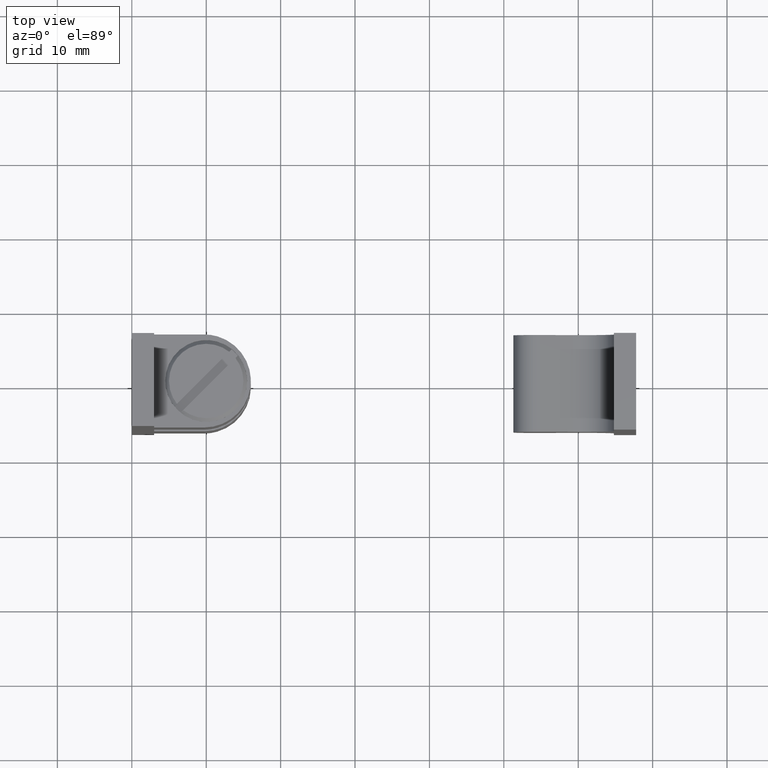
[diagram: clean part render]
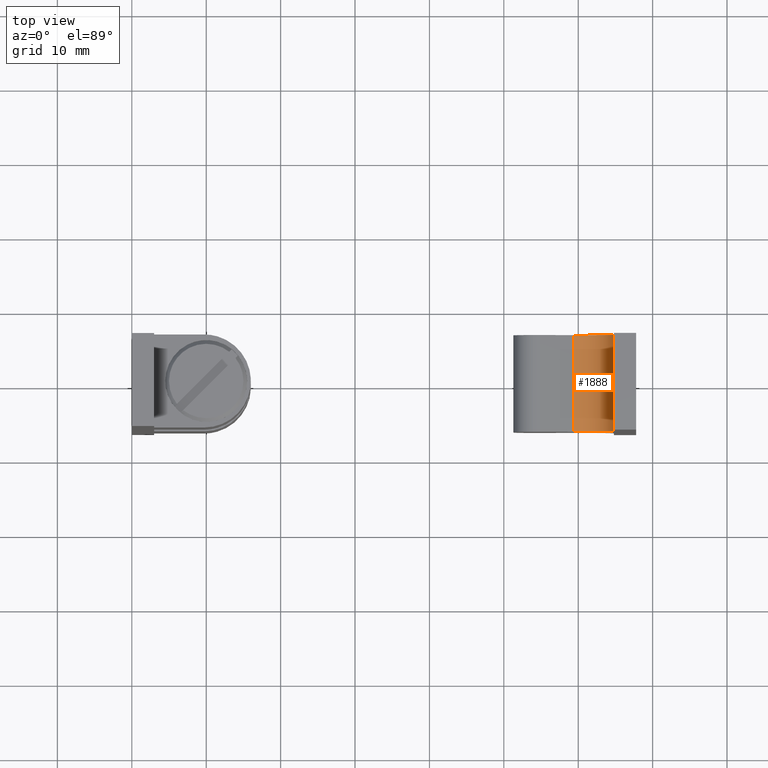
[diagram: same view with one face highlighted and labeled with its STEP entity id]
A machine part, top view. The second image highlights one B-rep face of the part: STEP entity #1888.
In plain terms, the highlighted face is a freeform B-spline surface patch.
Its self-contained STEP definition (entity closure, byte-faithful):
#1569=CARTESIAN_POINT('',(59.338878029489301,6.500000000000000,4.001630430318795));
#1570=VERTEX_POINT('',#1569);
#1576=CARTESIAN_POINT('',(64.790311049946709,6.500000000000000,8.399900000000001));
#1577=VERTEX_POINT('',#1576);
#1578=CARTESIAN_POINT('',(59.338878029489301,6.500000000000000,4.001630430318818));
#1579=CARTESIAN_POINT('',(61.441603186784363,6.500000000000000,3.546769236410277));
#1580=CARTESIAN_POINT('',(63.115957118365493,6.500000000000000,4.897654392389232));
#1581=CARTESIAN_POINT('',(64.790311049946610,6.500000000000000,6.248539548368188));
#1582=CARTESIAN_POINT('',(64.790311049946610,6.500000000000000,8.399900000000001));
#1590=(BOUNDED_CURVE()B_SPLINE_CURVE(2,(#1578,#1579,#1580,#1581,#1582),.UNSPECIFIED.,.F.,.U.)B_SPLINE_CURVE_WITH_KNOTS((3,2,3),(0.0,0.500000000000000,1.0),.UNSPECIFIED.)CURVE()GEOMETRIC_REPRESENTATION_ITEM()RATIONAL_B_SPLINE_CURVE((1.0,0.902197691345286,1.0,0.902197691345286,1.0))REPRESENTATION_ITEM(''));
#1591=EDGE_CURVE('',#1570,#1577,#1590,.T.);
#1705=CARTESIAN_POINT('',(64.790311049946709,-6.500000000000000,8.399900000000001));
#1706=VERTEX_POINT('',#1705);
#1712=CARTESIAN_POINT('',(59.338878029489301,-6.500000000000000,4.001630430318795));
#1713=VERTEX_POINT('',#1712);
#1714=CARTESIAN_POINT('',(59.338878029489301,-6.500000000000000,4.001630430318818));
#1715=CARTESIAN_POINT('',(61.441603186784363,-6.500000000000000,3.546769236410277));
#1716=CARTESIAN_POINT('',(63.115957118365493,-6.500000000000000,4.897654392389232));
#1717=CARTESIAN_POINT('',(64.790311049946610,-6.500000000000000,6.248539548368188));
#1718=CARTESIAN_POINT('',(64.790311049946610,-6.500000000000000,8.399900000000001));
#1726=(BOUNDED_CURVE()B_SPLINE_CURVE(2,(#1714,#1715,#1716,#1717,#1718),.UNSPECIFIED.,.F.,.U.)B_SPLINE_CURVE_WITH_KNOTS((3,2,3),(0.0,0.500000000000000,1.0),.UNSPECIFIED.)CURVE()GEOMETRIC_REPRESENTATION_ITEM()RATIONAL_B_SPLINE_CURVE((1.0,0.902197691345286,1.0,0.902197691345286,1.0))REPRESENTATION_ITEM(''));
#1727=EDGE_CURVE('',#1713,#1706,#1726,.T.);
#1856=CARTESIAN_POINT('',(59.338878029489301,-6.500000000000000,4.001630430318795));
#1857=CARTESIAN_POINT('',(59.338878029489301,6.500000000000000,4.001630430318795));
#1858=QUASI_UNIFORM_CURVE('',1,(#1856,#1857),.UNSPECIFIED.,.F.,.U.);
#1859=EDGE_CURVE('',#1713,#1570,#1858,.T.);
#1864=CARTESIAN_POINT('',(59.163601031701617,-6.825000000000001,4.043235618298518));
#1865=CARTESIAN_POINT('',(59.163601031701617,6.833125000000001,4.043235618298518));
#1866=CARTESIAN_POINT('',(65.261618489069818,-6.825000000000002,2.466181074113907));
#1867=CARTESIAN_POINT('',(65.261618489069818,6.833125000000001,2.466181074113907));
#1868=CARTESIAN_POINT('',(64.776970119186302,-6.825000000000000,8.746151926217431));
#1869=CARTESIAN_POINT('',(64.776970119186302,6.833125000000001,8.746151926217431));
#1877=(BOUNDED_SURFACE()B_SPLINE_SURFACE(1,2,((#1864,#1866,#1868),(#1865,#1867,#1869)),.UNSPECIFIED.,.F.,.F.,.U.)B_SPLINE_SURFACE_WITH_KNOTS((2,2),(3,3),(0.0,13.658125000000000),(0.0,9.261962789897734),.UNSPECIFIED.)GEOMETRIC_REPRESENTATION_ITEM()RATIONAL_B_SPLINE_SURFACE(((1.0,0.581093923517102,0.999218793492865),(1.0,0.581093923517102,0.999218793492865)))REPRESENTATION_ITEM('')SURFACE());
#1878=ORIENTED_EDGE('',*,*,#1591,.F.);
#1879=ORIENTED_EDGE('',*,*,#1859,.F.);
#1880=ORIENTED_EDGE('',*,*,#1727,.T.);
#1881=CARTESIAN_POINT('',(64.790311049946709,-6.500000000000000,8.399900000000001));
#1882=CARTESIAN_POINT('',(64.790311049946709,6.500000000000000,8.399900000000001));
#1883=QUASI_UNIFORM_CURVE('',1,(#1881,#1882),.UNSPECIFIED.,.F.,.U.);
#1884=EDGE_CURVE('',#1706,#1577,#1883,.T.);
#1885=ORIENTED_EDGE('',*,*,#1884,.T.);
#1886=EDGE_LOOP('',(#1878,#1879,#1880,#1885));
#1887=FACE_OUTER_BOUND('',#1886,.T.);
#1888=ADVANCED_FACE('',(#1887),#1877,.F.);